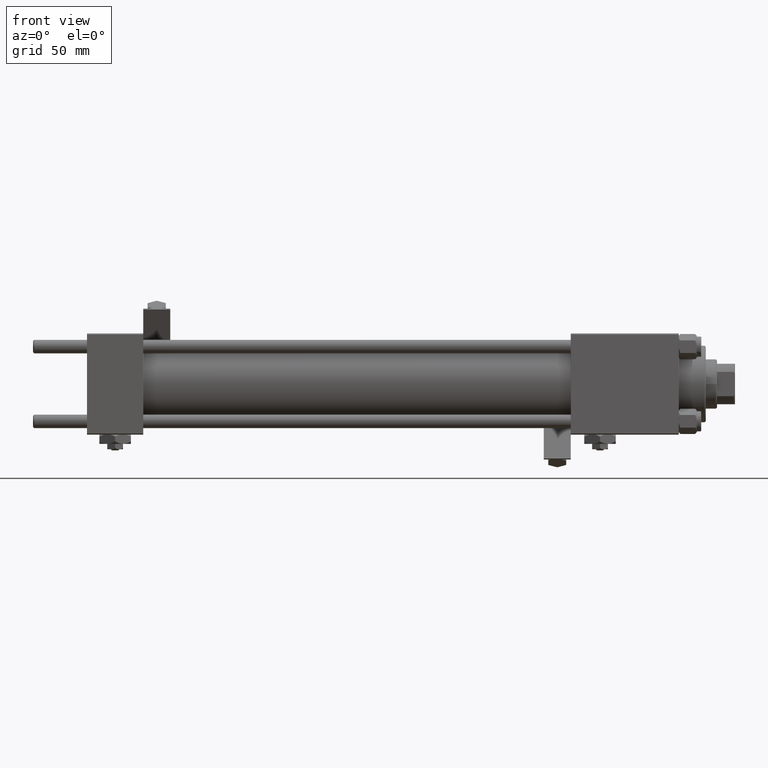
[diagram: clean part render]
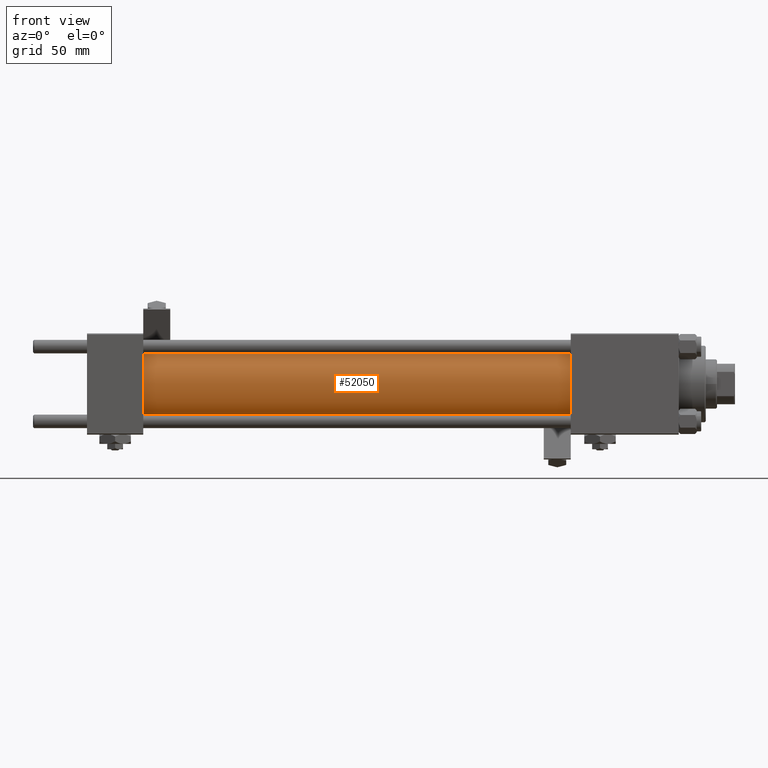
[diagram: same view with one face highlighted and labeled with its STEP entity id]
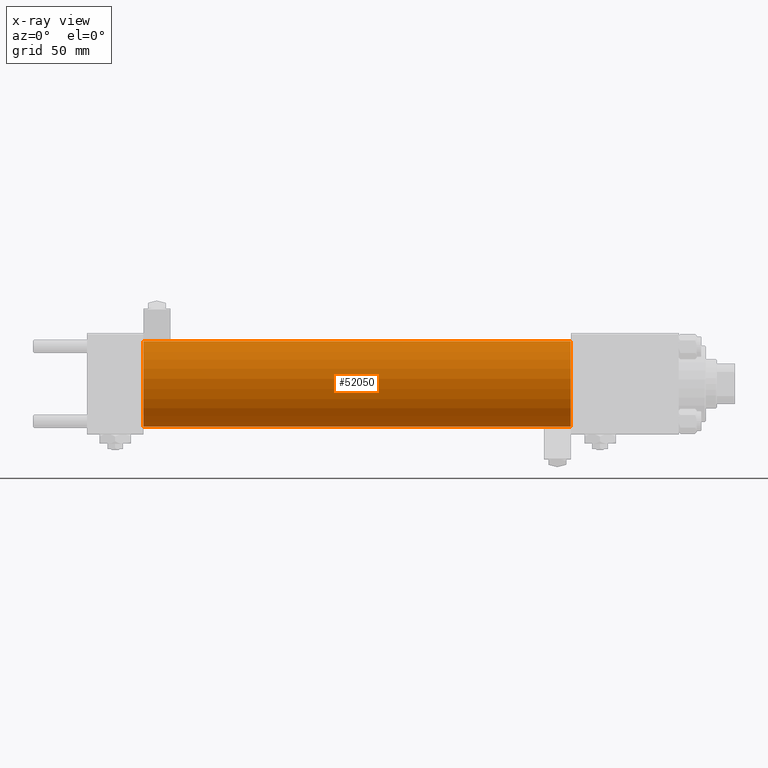
[diagram: x-ray of the same camera — body ghosted, the highlighted face saturated]
A machine part, front view. The second image highlights one B-rep face of the part: STEP entity #52050.
The next image is the same camera in x-ray: the body ghosted, the highlighted face saturated — about 0% of this face is hidden behind the body in this view.
In plain terms, the highlighted cylindrical surface (partial cylindrical patch) has radius 19 mm, axis along (-1, -0, -0).
Its self-contained STEP definition (entity closure, byte-faithful):
#878 = AXIS2_PLACEMENT_3D ( 'NONE', #16641, #36976, #32945 ) ;
#2998 = DIRECTION ( 'NONE',  ( 1.000000000000000000, -0.000000000000000000, 0.000000000000000000 ) ) ;
#3648 = DIRECTION ( 'NONE',  ( -1.000000000000000000, -0.000000000000000000, -0.000000000000000000 ) ) ;
#7282 = AXIS2_PLACEMENT_3D ( 'NONE', #15588, #2998, #43694 ) ;
#8965 = VERTEX_POINT ( 'NONE', #11083 ) ;
#9227 = DIRECTION ( 'NONE',  ( -1.000000000000000000, -0.000000000000000000, -0.000000000000000000 ) ) ;
#9444 = ORIENTED_EDGE ( 'NONE', *, *, #28462, .T. ) ;
#11083 = CARTESIAN_POINT ( 'NONE',  ( 215.0000000000000000, 2.326828918379970970E-15, -19.00000000000000000 ) ) ;
#11881 = CIRCLE ( 'NONE', #878, 19.00000000000000000 ) ;
#14111 = VERTEX_POINT ( 'NONE', #29387 ) ;
#14433 = VECTOR ( 'NONE', #3648, 1000.000000000000000 ) ;
#14983 = EDGE_CURVE ( 'NONE', #8965, #18848, #23986, .T. ) ;
#15588 = CARTESIAN_POINT ( 'NONE',  ( 24.99999999999999289, 0.000000000000000000, 0.000000000000000000 ) ) ;
#15882 = DIRECTION ( 'NONE',  ( -1.000000000000000000, -0.000000000000000000, -0.000000000000000000 ) ) ;
#16022 = ORIENTED_EDGE ( 'NONE', *, *, #14983, .F. ) ;
#16641 = CARTESIAN_POINT ( 'NONE',  ( 215.0000000000000000, 0.000000000000000000, 0.000000000000000000 ) ) ;
#17532 = LINE ( 'NONE', #28769, #50824 ) ;
#18848 = VERTEX_POINT ( 'NONE', #49204 ) ;
#23986 = LINE ( 'NONE', #40297, #14433 ) ;
#25245 = CIRCLE ( 'NONE', #7282, 19.00000000000000000 ) ;
#28462 = EDGE_CURVE ( 'NONE', #31070, #14111, #17532, .T. ) ;
#28769 = CARTESIAN_POINT ( 'NONE',  ( 215.0000000000000000, 0.000000000000000000, 19.00000000000000000 ) ) ;
#29226 = CYLINDRICAL_SURFACE ( 'NONE', #48777, 19.00000000000000000 ) ;
#29387 = CARTESIAN_POINT ( 'NONE',  ( 24.99999999999999289, 0.000000000000000000, 19.00000000000000000 ) ) ;
#31070 = VERTEX_POINT ( 'NONE', #47073 ) ;
#32945 = DIRECTION ( 'NONE',  ( 0.000000000000000000, 0.000000000000000000, -1.000000000000000000 ) ) ;
#34113 = EDGE_CURVE ( 'NONE', #14111, #18848, #25245, .T. ) ;
#35953 = EDGE_LOOP ( 'NONE', ( #16022, #49883, #9444, #43128 ) ) ;
#36976 = DIRECTION ( 'NONE',  ( 1.000000000000000000, 0.000000000000000000, 0.000000000000000000 ) ) ;
#40297 = CARTESIAN_POINT ( 'NONE',  ( 215.0000000000000000, 2.326828918379970970E-15, -19.00000000000000000 ) ) ;
#43128 = ORIENTED_EDGE ( 'NONE', *, *, #34113, .T. ) ;
#43694 = DIRECTION ( 'NONE',  ( 0.000000000000000000, 0.000000000000000000, 1.000000000000000000 ) ) ;
#47073 = CARTESIAN_POINT ( 'NONE',  ( 215.0000000000000000, 0.000000000000000000, 19.00000000000000000 ) ) ;
#48524 = EDGE_CURVE ( 'NONE', #31070, #8965, #11881, .T. ) ;
#48777 = AXIS2_PLACEMENT_3D ( 'NONE', #52540, #15882, #52810 ) ;
#49204 = CARTESIAN_POINT ( 'NONE',  ( 24.99999999999999289, 2.326828918379970970E-15, -19.00000000000000000 ) ) ;
#49571 = FACE_OUTER_BOUND ( 'NONE', #35953, .T. ) ;
#49883 = ORIENTED_EDGE ( 'NONE', *, *, #48524, .F. ) ;
#50824 = VECTOR ( 'NONE', #9227, 1000.000000000000000 ) ;
#52050 = ADVANCED_FACE ( 'NONE', ( #49571 ), #29226, .T. ) ;
#52540 = CARTESIAN_POINT ( 'NONE',  ( 215.0000000000000000, 0.000000000000000000, 0.000000000000000000 ) ) ;
#52810 = DIRECTION ( 'NONE',  ( 0.000000000000000000, 0.000000000000000000, 1.000000000000000000 ) ) ;